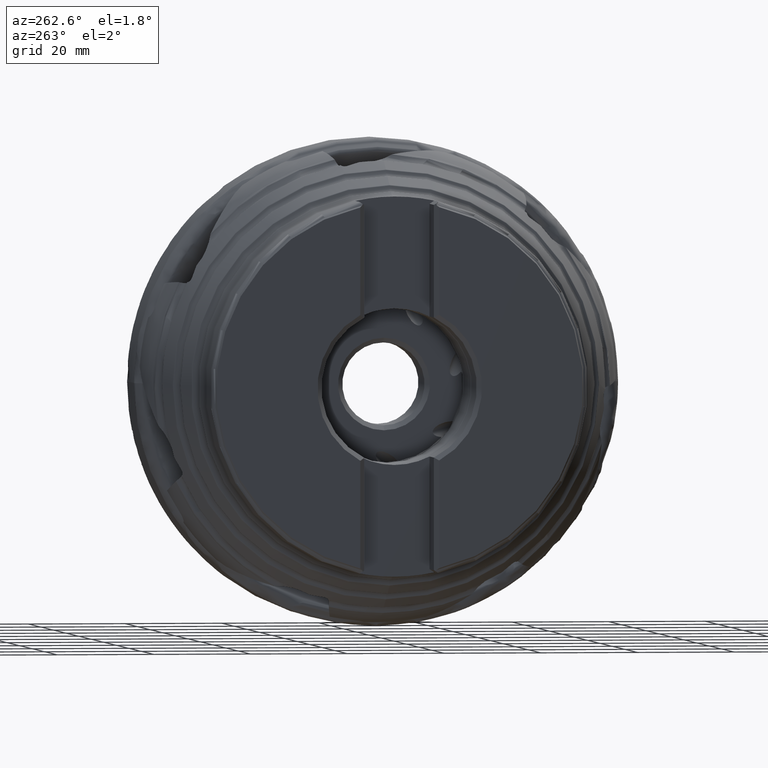
[diagram: clean part render]
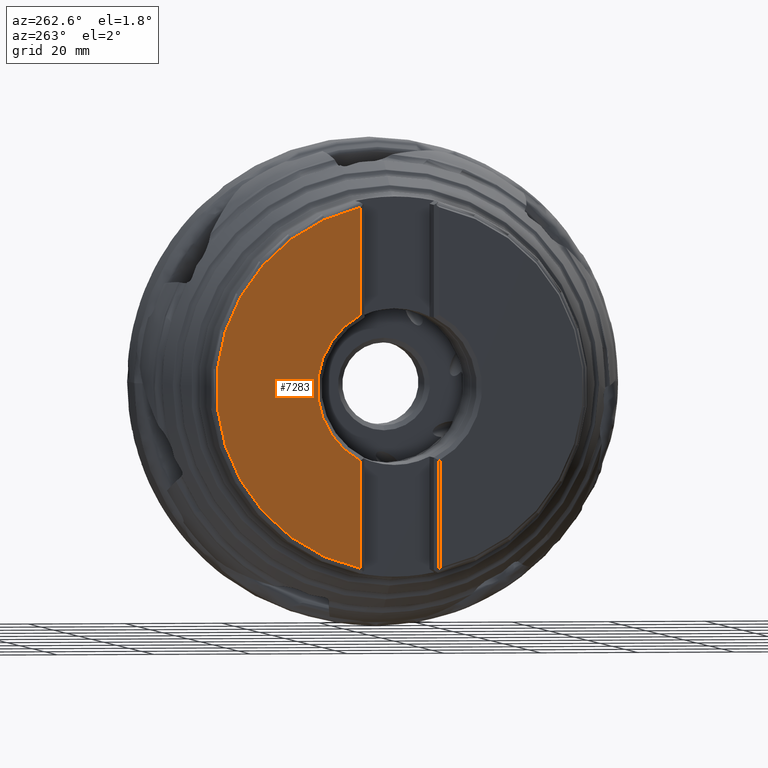
[diagram: same view with one face highlighted and labeled with its STEP entity id]
A machine part, auxiliary view. The second image highlights one B-rep face of the part: STEP entity #7283.
In plain terms, the highlighted planar face has unit normal (1, 0, -0).
Its self-contained STEP definition (entity closure, byte-faithful):
#744 = DIRECTION ( 'NONE',  ( 0.0000000000000000000, 0.0000000000000000000, -1.000000000000000000 ) ) ;
#785 = DIRECTION ( 'NONE',  ( 0.0000000000000000000, 0.0000000000000000000, -1.000000000000000000 ) ) ;
#2534 = ORIENTED_EDGE ( 'NONE', *, *, #16873, .F. ) ;
#2690 = CARTESIAN_POINT ( 'NONE',  ( -49.20000000000000300, 8.150000000000025200, -40.00000000000000000 ) ) ;
#3041 = CARTESIAN_POINT ( 'NONE',  ( -49.20000000000000300, 8.150000000000021700, -37.03360351109090900 ) ) ;
#4236 = AXIS2_PLACEMENT_3D ( 'NONE', #5222, #19224, #17516 ) ;
#4428 = CARTESIAN_POINT ( 'NONE',  ( -49.20000000000000300, 0.0000000000000000000, 0.0000000000000000000 ) ) ;
#4534 = AXIS2_PLACEMENT_3D ( 'NONE', #5429, #20968, #12178 ) ;
#4649 = CARTESIAN_POINT ( 'NONE',  ( -49.20000000000000300, 8.150000000000025200, 14.94751233483350600 ) ) ;
#5202 = PLANE ( 'NONE',  #4534 ) ;
#5222 = CARTESIAN_POINT ( 'NONE',  ( -49.20000000000000300, 0.0000000000000000000, 0.0000000000000000000 ) ) ;
#5263 = VECTOR ( 'NONE', #15807, 1000.000000000000000 ) ;
#5429 = CARTESIAN_POINT ( 'NONE',  ( -49.20000000000000300, -6.025262251804978400E-015, 0.0000000000000000000 ) ) ;
#6093 = LINE ( 'NONE', #13784, #5263 ) ;
#6201 = EDGE_LOOP ( 'NONE', ( #14121, #2534, #18310, #9590 ) ) ;
#7283 = ADVANCED_FACE ( 'NONE', ( #13679 ), #5202, .F. ) ;
#7790 = CARTESIAN_POINT ( 'NONE',  ( -49.20000000000000300, 8.150000000000025200, 37.03360351109089500 ) ) ;
#7870 = VERTEX_POINT ( 'NONE', #19720 ) ;
#9574 = EDGE_CURVE ( 'NONE', #11049, #14228, #15684, .T. ) ;
#9590 = ORIENTED_EDGE ( 'NONE', *, *, #9574, .F. ) ;
#11049 = VERTEX_POINT ( 'NONE', #7790 ) ;
#11458 = DIRECTION ( 'NONE',  ( -1.000000000000000000, 0.0000000000000000000, 0.0000000000000000000 ) ) ;
#12178 = DIRECTION ( 'NONE',  ( -0.0000000000000000000, 0.0000000000000000000, -1.000000000000000000 ) ) ;
#12841 = EDGE_CURVE ( 'NONE', #11049, #16722, #13427, .T. ) ;
#13414 = AXIS2_PLACEMENT_3D ( 'NONE', #4428, #11458, #744 ) ;
#13427 = CIRCLE ( 'NONE', #13414, 37.91978756555322100 ) ;
#13538 = EDGE_CURVE ( 'NONE', #14228, #7870, #22749, .T. ) ;
#13679 = FACE_OUTER_BOUND ( 'NONE', #6201, .T. ) ;
#13784 = CARTESIAN_POINT ( 'NONE',  ( -49.20000000000000300, 8.150000000000025200, -40.00000000000000000 ) ) ;
#14121 = ORIENTED_EDGE ( 'NONE', *, *, #12841, .T. ) ;
#14228 = VERTEX_POINT ( 'NONE', #4649 ) ;
#15684 = LINE ( 'NONE', #2690, #22567 ) ;
#15807 = DIRECTION ( 'NONE',  ( 0.0000000000000000000, 0.0000000000000000000, -1.000000000000000000 ) ) ;
#16722 = VERTEX_POINT ( 'NONE', #3041 ) ;
#16873 = EDGE_CURVE ( 'NONE', #7870, #16722, #6093, .T. ) ;
#17516 = DIRECTION ( 'NONE',  ( 0.0000000000000000000, 8.881784197001252300E-016, -1.000000000000000000 ) ) ;
#18310 = ORIENTED_EDGE ( 'NONE', *, *, #13538, .F. ) ;
#19224 = DIRECTION ( 'NONE',  ( -1.000000000000000000, 0.0000000000000000000, 0.0000000000000000000 ) ) ;
#19720 = CARTESIAN_POINT ( 'NONE',  ( -49.20000000000000300, 8.150000000000025200, -14.94751233483350600 ) ) ;
#20968 = DIRECTION ( 'NONE',  ( 1.000000000000000000, 0.0000000000000000000, -0.0000000000000000000 ) ) ;
#22567 = VECTOR ( 'NONE', #785, 1000.000000000000000 ) ;
#22749 = CIRCLE ( 'NONE', #4236, 17.02500000000000600 ) ;